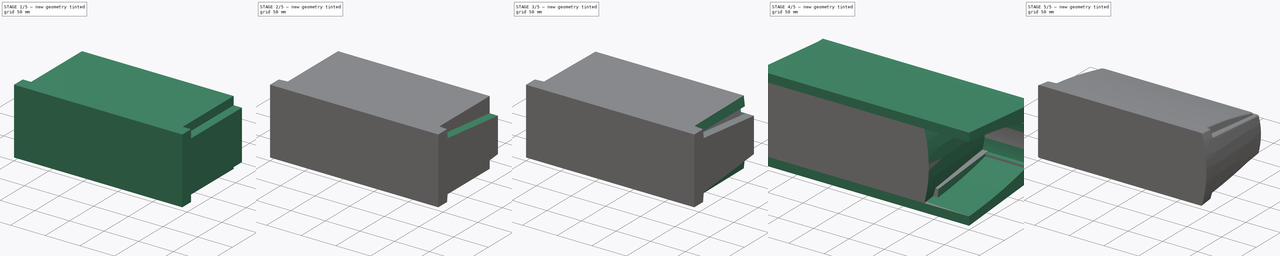
[diagram: build sequence overview — one tinted view per stage of 5, left to right]
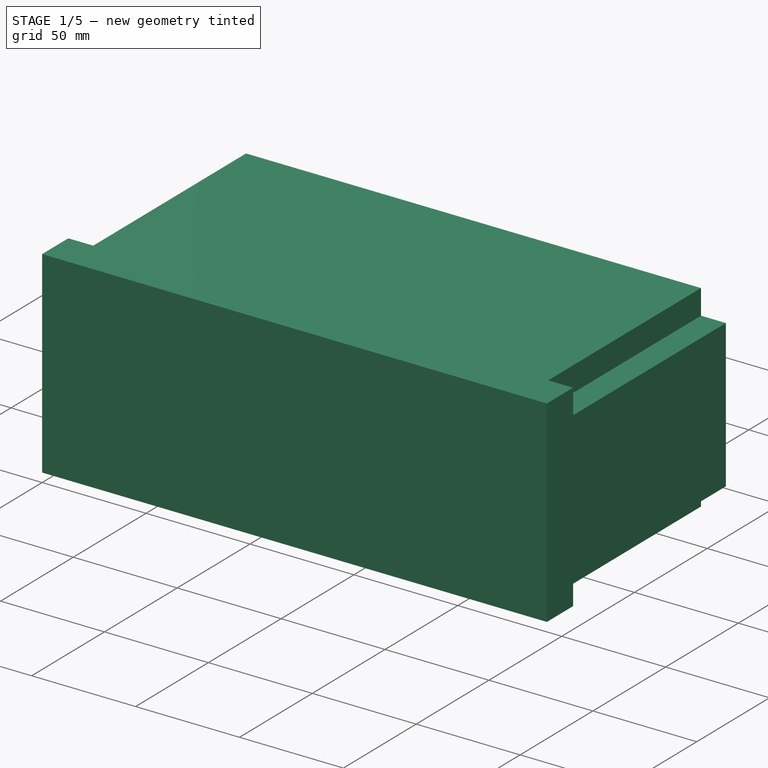
[diagram: stage 1 of 5 — iso view after this stage's code; geometry added in this stage tinted green]
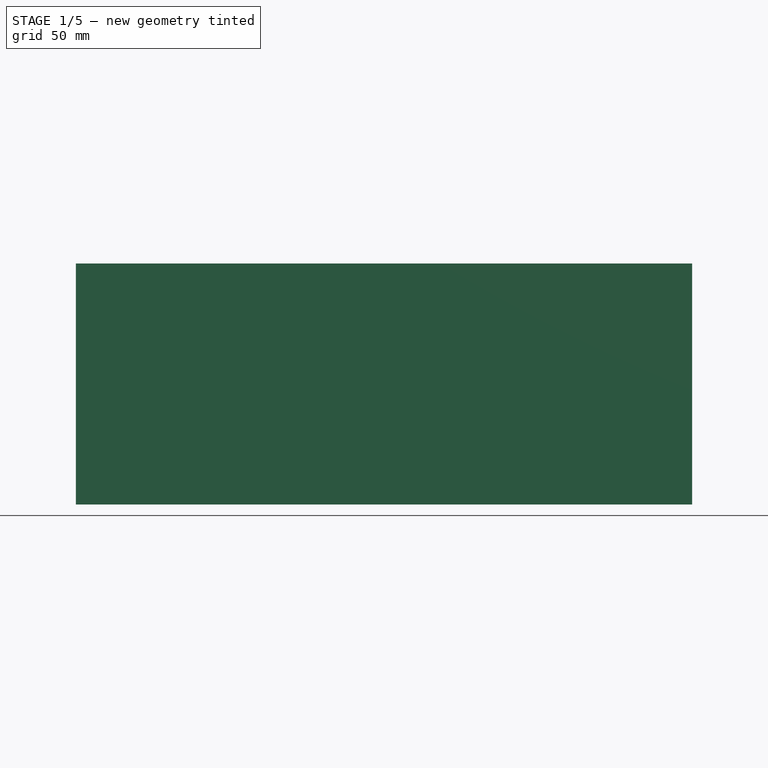
[diagram: stage 1 of 5 — front view after this stage's code; geometry added in this stage tinted green]
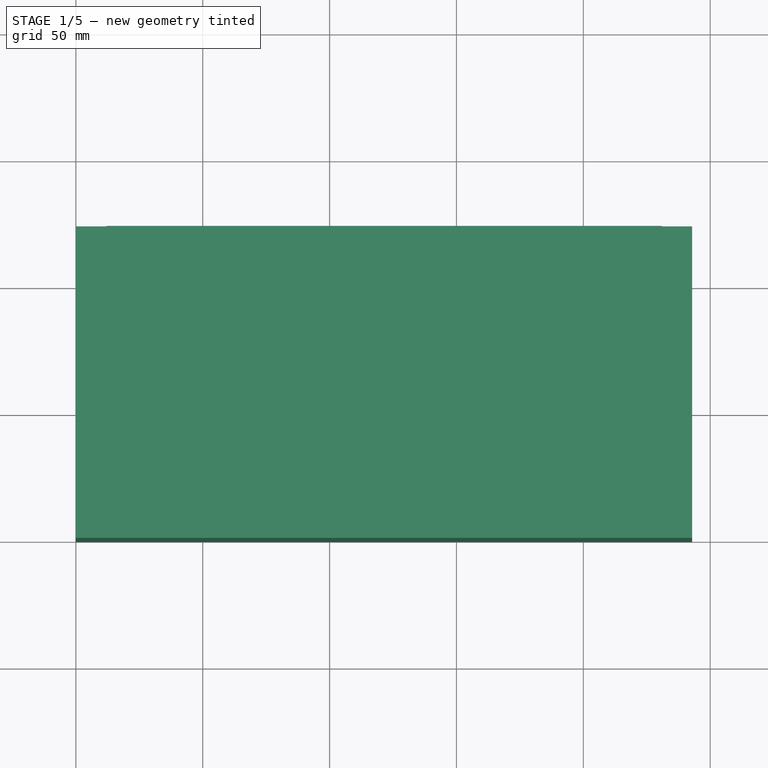
[diagram: stage 1 of 5 — top view after this stage's code; geometry added in this stage tinted green]
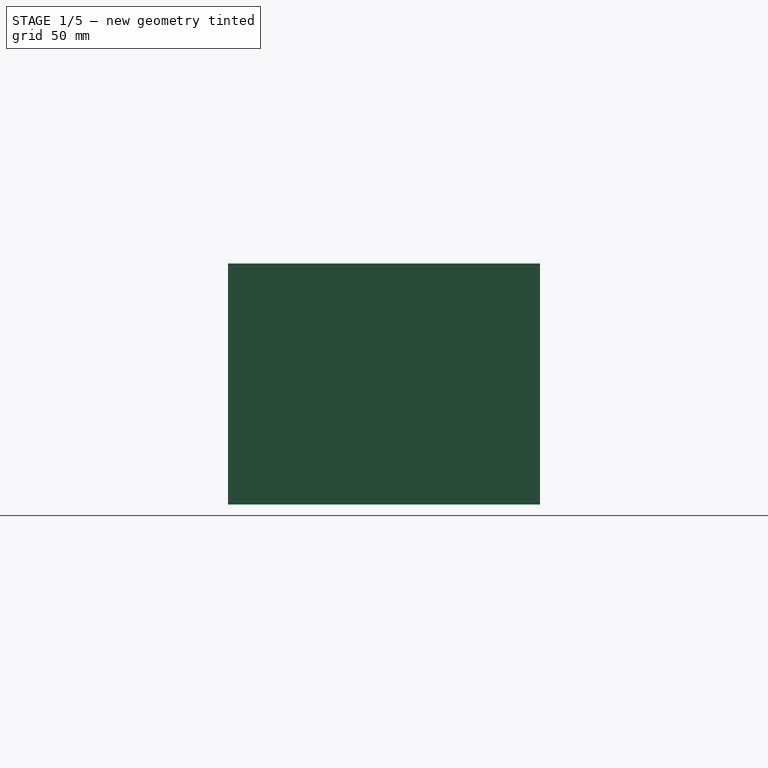
[diagram: stage 1 of 5 — right view after this stage's code; geometry added in this stage tinted green]
FCSTD DOCUMENT  (FreeCAD 0.16R6704 (Git))
Label: speaker-back-4
License: All rights reserved
LicenseURL: http://en.wikipedia.org/wiki/All_rights_reserved
objects: PartDesign::Draft×9, Sketcher::SketchObject×7, PartDesign::Pad×5, Part::Cut×3, PartDesign::Pocket×2, PartDesign::Mirrored×1, PartDesign::LinearPattern×1, PartDesign::MultiTransform×1, Part::Fillet×1, PartDesign::Fillet×1
note: 38 computed .brp shape members not serialized (recipe doc carries the construction recipe); baked Part::Feature solids carry a one-line shape summary decoded from their .brp

FEATURE [Sketcher::SketchObject] Sketch003
  Placement = pos=(0,0,0) rot=(1,0,0;1.5708rad)
  sketch-geometry (9):
    g0: LineSegment StartX=0 StartY=0 StartZ=0 EndX=242.88 EndY=0 EndZ=0
    g1: LineSegment StartX=242.88 StartY=95 StartZ=0 EndX=0 EndY=95 EndZ=0
    g2: LineSegment StartX=0 StartY=95 StartZ=0 EndX=0 EndY=0 EndZ=0
    g3: GeomPoint [constr] X=242.88 Y=47.5 Z=0
    g4: GeomPoint [constr] X=121.44 Y=95 Z=0
    g5: GeomPoint [constr] X=121.44 Y=0 Z=0
    g6: GeomPoint [constr] X=0 Y=47.5 Z=0
    g7: LineSegment StartX=242.88 StartY=47.5 StartZ=0 EndX=242.88 EndY=95 EndZ=0
    g8: LineSegment StartX=242.88 StartY=47.5 StartZ=0 EndX=242.88 EndY=0 EndZ=0
  constraints (21):
    c: Coincident(g1,g2)
    c: Coincident(g2,g0)
    c: Horizontal(g0)
    c: Horizontal(g1)
    c: Vertical(g2)
    c: Coincident(g0,g-1)
    c: PointOnObject(g4,g1)
    c: PointOnObject(g5,g0)
    c: PointOnObject(g6,g2)
    c: DistanceY(g5,g4) = 95
    c: Symmetric(g1,g1,g4)
    c: Symmetric(g-1,g0,g5)
    c: Symmetric(g-1,g1,g6)
    c: DistanceX(g6,g3) = 242.88
    c: DistanceY(g3,g6) = 0
    c: Coincident(g7,g3)
    c: Vertical(g7)
    c: Coincident(g8,g3)
    c: Vertical(g8)
    c: Coincident(g8,g0)
    c: Coincident(g7,g1)
FEATURE [PartDesign::Pad] Pad003
  Length = 123
  Length2 = 100
  Placement = pos=(0,0,0) rot=(1,0,0;1.5708rad)
  Reversed = true
  Sketch = -> Sketch003
  Type = 0
FEATURE [Sketcher::SketchObject] Sketch004
  Placement = pos=(0,0,0) rot=(1,0,0;1.5708rad)
  sketch-geometry (8):
    g0: LineSegment StartX=0 StartY=0 StartZ=0 EndX=236.53 EndY=0 EndZ=0
    g1: LineSegment StartX=236.53 StartY=95 StartZ=0 EndX=0 EndY=95 EndZ=0
    g2: LineSegment StartX=0 StartY=95 StartZ=0 EndX=0 EndY=0 EndZ=0
    g3: GeomPoint [constr] X=242.88 Y=47.5 Z=0
    g4: ArcOfCircle CenterX=62.0475 CenterY=47.5 CenterZ=0 NormalX=0 NormalY=0 NormalZ=1 Radius=180.832 StartAngle=6.01739 EndAngle=6.54898
    g5: GeomPoint [constr] X=118.265 Y=95 Z=0
    g6: GeomPoint [constr] X=118.265 Y=0 Z=0
    g7: GeomPoint [constr] X=0 Y=47.5 Z=0
  constraints (20):
    c: Coincident(g1,g2)
    c: Coincident(g2,g0)
    c: Horizontal(g0)
    c: Horizontal(g1)
    c: Vertical(g2)
    c: Coincident(g0,g-1)
    c: Coincident(g4,g0)
    c: PointOnObject(g3,g4)
    c: PointOnObject(g5,g1)
    c: PointOnObject(g6,g0)
    c: PointOnObject(g7,g2)
    c: DistanceY(g6,g5) = 95
    c: Symmetric(g1,g1,g5)
    c: Symmetric(g-1,g0,g6)
    c: Symmetric(g-1,g1,g7)
    c: DistanceX(g7,g3) = 242.88
    c: DistanceY(g3,g7) = 0
    c: DistanceX(g1,g3) = 6.35
    c: DistanceX(g0,g1) = 0
    c: Coincident(g4,g1)
FEATURE [PartDesign::Pad] Pad004
  Length = 123
  Length2 = 100
  Placement = pos=(0,0,0) rot=(1,0,0;1.5708rad)
  Reversed = true
  Sketch = -> Sketch004
  Type = 0
FEATURE [Sketcher::SketchObject] Sketch005
  ExternalGeometry = -> [Pad004]
  Placement = pos=(0,0,0) rot=(0.707107,0,-0.707107;3.14159rad)
  Support = -> Pad003 [Face3]
  sketch-geometry (10):
    g0: GeomPoint [constr] X=-12 Y=-18 Z=0
    g1: LineSegment StartX=-12 StartY=-18 StartZ=0 EndX=0 EndY=-18 EndZ=0
    g2: GeomPoint [constr] X=-83 Y=-18 Z=0
    g3: LineSegment StartX=-83 StartY=-18 StartZ=0 EndX=-95 EndY=-18 EndZ=0
    g4: LineSegment StartX=-83 StartY=-18 StartZ=0 EndX=-83 EndY=-123 EndZ=0
    g5: LineSegment StartX=-12 StartY=-18 StartZ=0 EndX=-12 EndY=-123 EndZ=0
    g6: LineSegment StartX=-12 StartY=-123 StartZ=0 EndX=0 EndY=-123 EndZ=0
    g7: LineSegment StartX=0 StartY=-123 StartZ=0 EndX=0 EndY=-18 EndZ=0
    g8: LineSegment StartX=-83 StartY=-123 StartZ=0 EndX=-95 EndY=-123 EndZ=0
    g9: LineSegment StartX=-95 StartY=-123 StartZ=0 EndX=-95 EndY=-18 EndZ=0
  constraints (24):
    c: DistanceY(g0,g-1) = 18
    c: Coincident(g1,g0)
    c: PointOnObject(g1,g-6)
    c: Horizontal(g1)
    c: DistanceX(g0,g1) = 12
    c: DistanceY(g2,g-4) = 18
    c: Coincident(g3,g2)
    c: PointOnObject(g3,g-3)
    c: Horizontal(g3)
    c: DistanceX(g3,g2) = 12
    c: Coincident(g4,g2)
    c: PointOnObject(g4,g-5)
    c: Vertical(g4)
    c: Coincident(g5,g0)
    c: PointOnObject(g5,g-5)
    c: Vertical(g5)
    c: Coincident(g6,g5)
    c: Coincident(g6,g-6)
    c: Coincident(g7,g6)
    c: Coincident(g7,g1)
    c: Coincident(g8,g4)
    c: Coincident(g8,g-5)
    c: Coincident(g9,g8)
    c: Coincident(g9,g3)
FEATURE [PartDesign::Pocket] Pocket
  Length = 12
  Placement = pos=(0,0,0) rot=(1,0,0;1.5708rad)
  Sketch = -> Sketch005
  Type = 0
FEATURE [PartDesign::Mirrored] Mirrored
  MirrorPlane = -> Pocket [Face7]
  Placement = pos=(0,0,0) rot=(1,0,0;1.5708rad)
FEATURE [PartDesign::LinearPattern] LinearPattern
  Direction = -> Pocket [Face7]
  Length = 242.9
  Occurrences = 2
  Placement = pos=(0,0,0) rot=(1,0,0;1.5708rad)
  Reversed = true
FEATURE [PartDesign::MultiTransform] MultiTransform
  Originals = -> [Pocket]
  Placement = pos=(0,0,0) rot=(1,0,0;1.5708rad)
  Transformations = -> [Mirrored,LinearPattern]
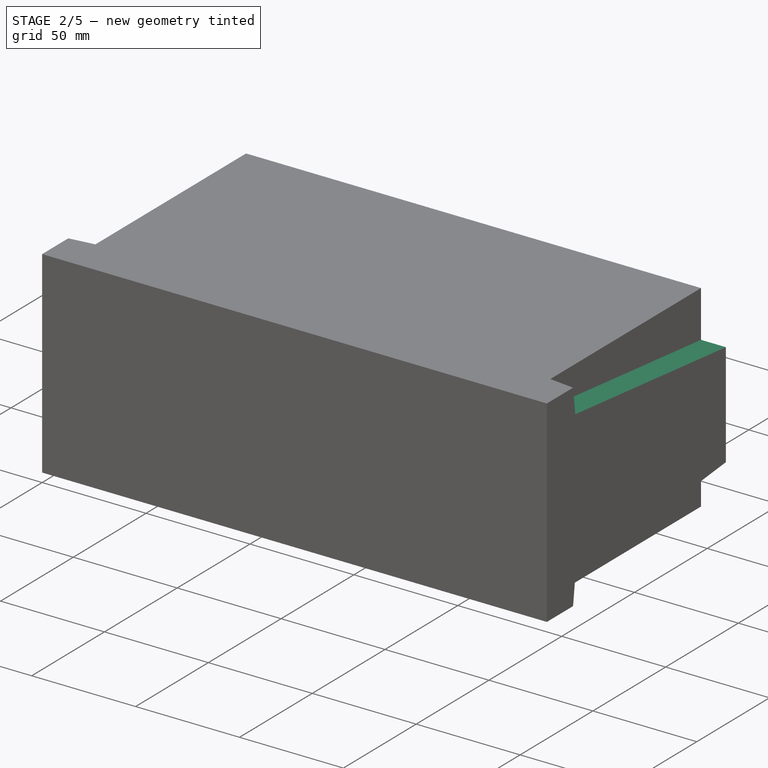
[diagram: stage 2 of 5 — iso view after this stage's code; geometry added in this stage tinted green]
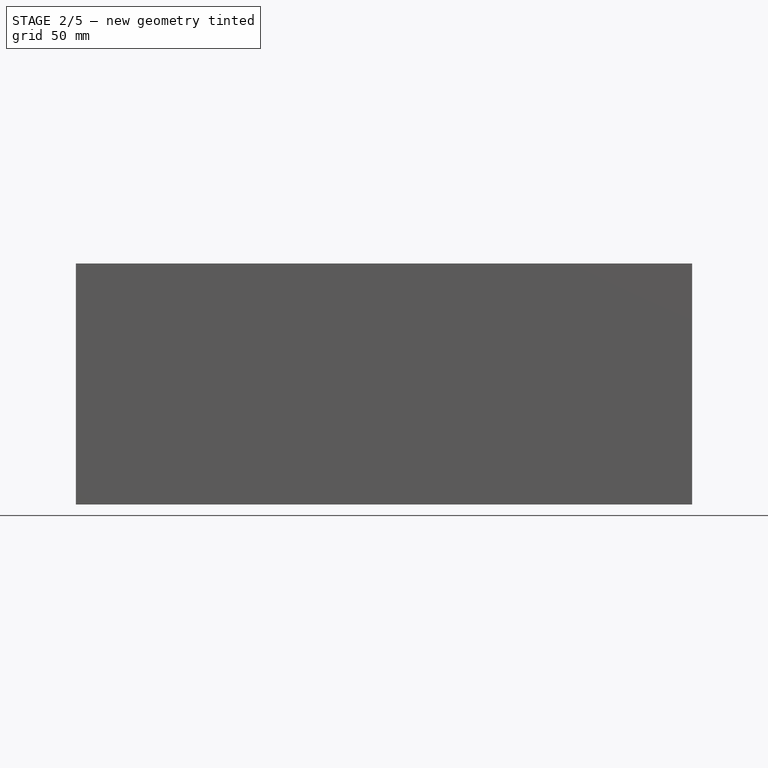
[diagram: stage 2 of 5 — front view after this stage's code; geometry added in this stage tinted green]
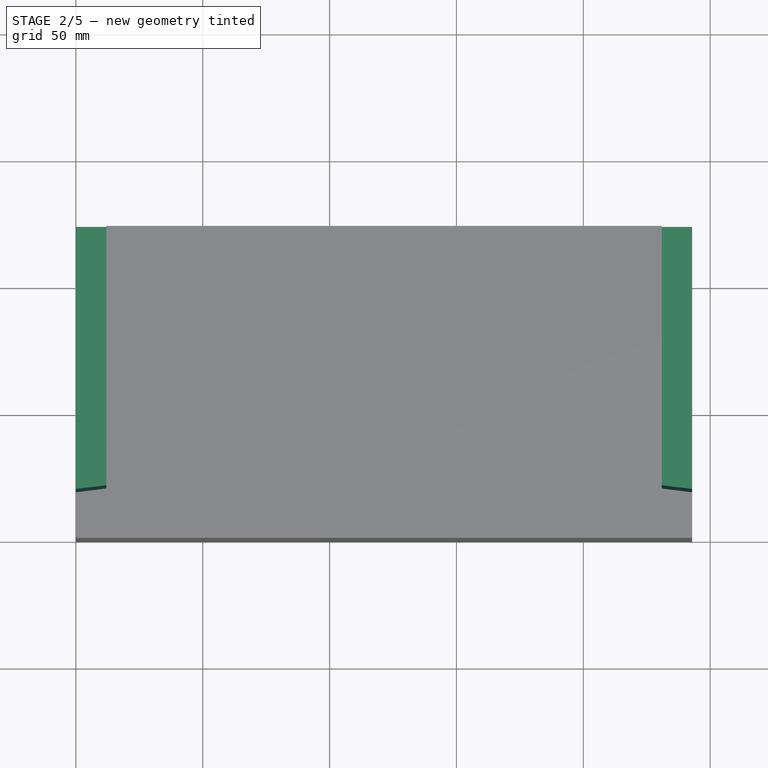
[diagram: stage 2 of 5 — top view after this stage's code; geometry added in this stage tinted green]
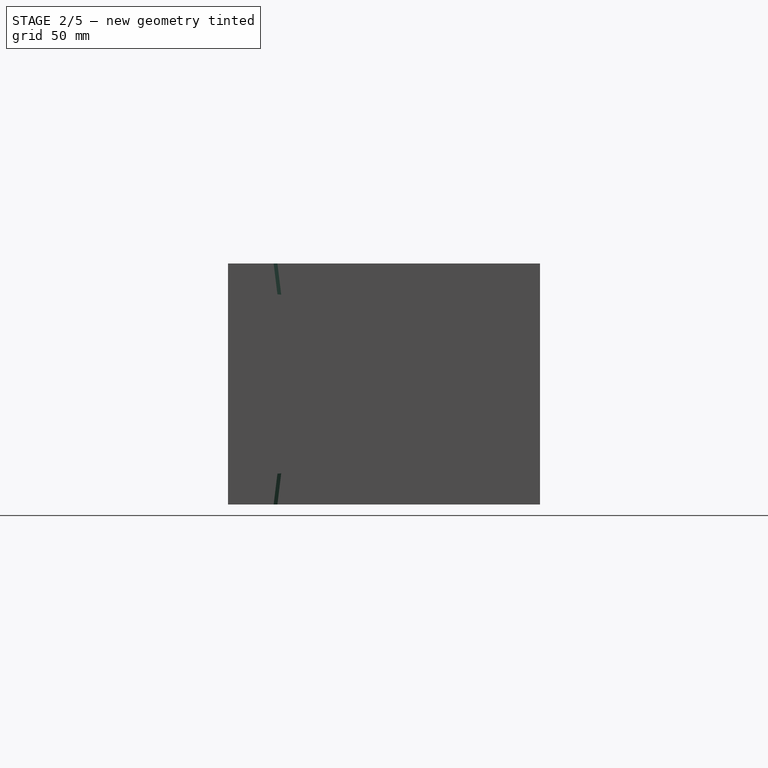
[diagram: stage 2 of 5 — right view after this stage's code; geometry added in this stage tinted green]
FEATURE [PartDesign::Draft] Draft001
  Angle = 5.71
  Base = -> MultiTransform [Face13,Face14,Face17,Face5]
  NeutralPlane = -> MultiTransform [Face10]
  Placement = pos=(0,0,0) rot=(1,0,0;1.5708rad)
  Reversed = true
FEATURE [PartDesign::Draft] Draft002
  Angle = 7
  Base = -> Draft001 [Face10,Face4]
  NeutralPlane = -> Draft001 [Face3]
  Placement = pos=(0,0,0) rot=(1,0,0;1.5708rad)
FEATURE [PartDesign::Draft] Draft003
  Angle = 7
  Base = -> Draft002 [Face18,Face19]
  NeutralPlane = -> Draft002 [Face9]
  Placement = pos=(0,0,0) rot=(1,0,0;1.5708rad)
FEATURE [PartDesign::Draft] Draft004
  Angle = 7
  Base = -> Draft003 [Face4,Face18]
  NeutralPlane = -> Draft003 [Face7]
  Placement = pos=(0,0,0) rot=(1,0,0;1.5708rad)
  Reversed = true
FEATURE [PartDesign::Draft] Draft005
  Angle = 7
  Base = -> Draft004 [Face19,Face10]
  NeutralPlane = -> Draft004 [Face8]
  Placement = pos=(0,0,0) rot=(1,0,0;1.5708rad)
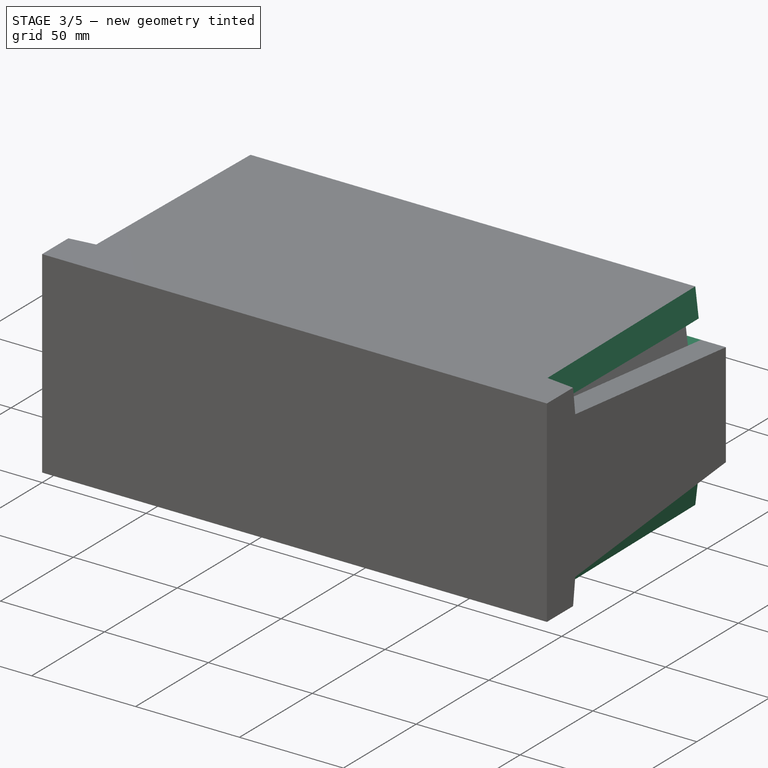
[diagram: stage 3 of 5 — iso view after this stage's code; geometry added in this stage tinted green]
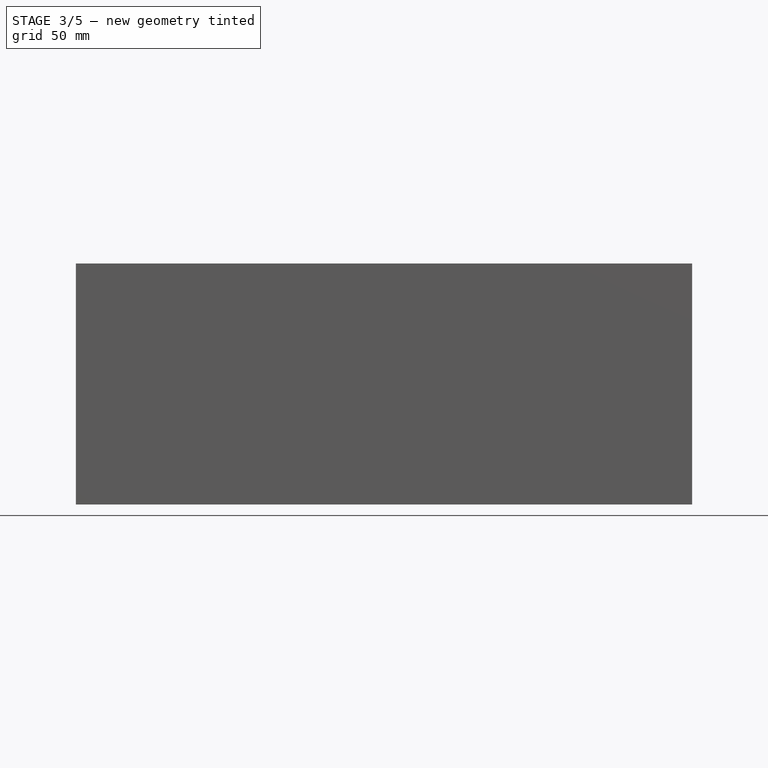
[diagram: stage 3 of 5 — front view after this stage's code; geometry added in this stage tinted green]
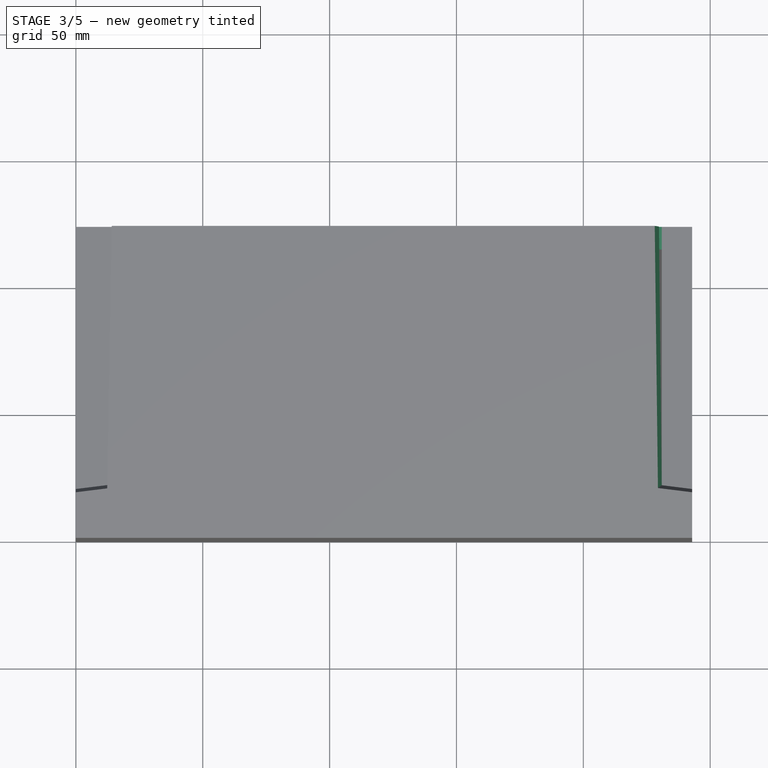
[diagram: stage 3 of 5 — top view after this stage's code; geometry added in this stage tinted green]
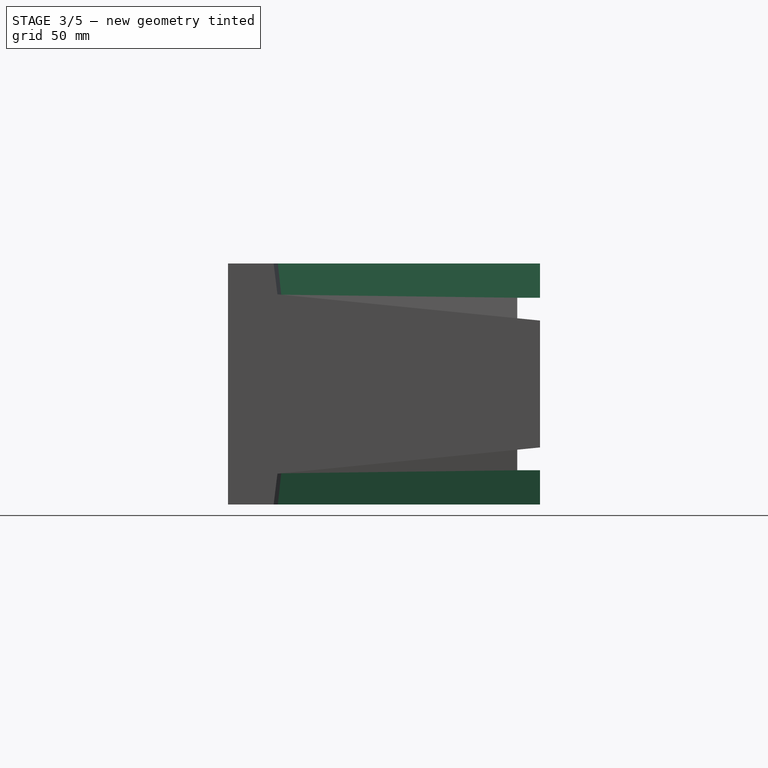
[diagram: stage 3 of 5 — right view after this stage's code; geometry added in this stage tinted green]
FEATURE [PartDesign::Draft] Draft006
  Angle = 7
  Base = -> Draft005 [Face16]
  NeutralPlane = -> Draft005 [Face17]
  Placement = pos=(0,0,0) rot=(1,0,0;1.5708rad)
  Reversed = true
FEATURE [PartDesign::Draft] Draft007  label="Draft009"
  Angle = 7
  Base = -> Draft006 [Face12]
  NeutralPlane = -> Draft006 [Face5]
  Placement = pos=(0,0,0) rot=(1,0,0;1.5708rad)
FEATURE [PartDesign::Draft] Draft008  label="Drafted Mask"
  Angle = 1
  Base = -> Draft007 [Face11,Face15]
  NeutralPlane = -> Draft007 [Face2]
  Placement = pos=(0,0,0) rot=(1,0,0;1.5708rad)
FEATURE [Sketcher::SketchObject] Sketch007
  ExternalGeometry = -> [Draft008]
  Placement = pos=(0,0,0) rot=(0.707107,0,-0.707107;3.14159rad)
  Support = -> Draft008 [Face8]
  sketch-geometry (8):
    g0: LineSegment StartX=-22.4989 StartY=-123 StartZ=0 EndX=-21.599 EndY=-114 EndZ=0
    g1: LineSegment StartX=-21.599 StartY=-114 StartZ=0 EndX=-13.4989 EndY=-114 EndZ=0
    g2: LineSegment StartX=-13.4989 StartY=-114 StartZ=0 EndX=-13.4989 EndY=-123 EndZ=0
    g3: LineSegment StartX=-13.4989 StartY=-123 StartZ=0 EndX=-22.4989 EndY=-123 EndZ=0
    g4: LineSegment StartX=-72.5011 StartY=-123 StartZ=0 EndX=-73.401 EndY=-114 EndZ=0
    g5: LineSegment StartX=-73.401 StartY=-114 StartZ=0 EndX=-81.5011 EndY=-114 EndZ=0
    g6: LineSegment StartX=-81.5011 StartY=-114 StartZ=0 EndX=-81.5011 EndY=-123 EndZ=0
    g7: LineSegment StartX=-81.5011 StartY=-123 StartZ=0 EndX=-72.5011 EndY=-123 EndZ=0
  constraints (22):
    c: Coincident(g0,g-4)
    c: PointOnObject(g0,g-3)
    c: Coincident(g1,g0)
    c: Horizontal(g1)
    c: Coincident(g2,g1)
    c: PointOnObject(g2,g-4)
    c: Vertical(g2)
    c: Coincident(g3,g2)
    c: Coincident(g3,g0)
    c: DistanceY(g2,g2) = 9
    c: DistanceX(g3,g3) = 9
    c: Coincident(g4,g-6)
    c: PointOnObject(g4,g-6)
    c: Coincident(g5,g4)
    c: Horizontal(g5)
    c: Coincident(g6,g5)
    c: PointOnObject(g6,g-5)
    c: Vertical(g6)
    c: Coincident(g7,g6)
    c: Coincident(g7,g4)
    c: DistanceX(g7,g7) = 9
    c: DistanceY(g6,g6) = 9
FEATURE [PartDesign::Pocket] Pocket001  label="Pillar Mask"
  Length = 15
  Placement = pos=(0,0,0) rot=(1,0,0;1.5708rad)
  Sketch = -> Sketch007
  Type = 1
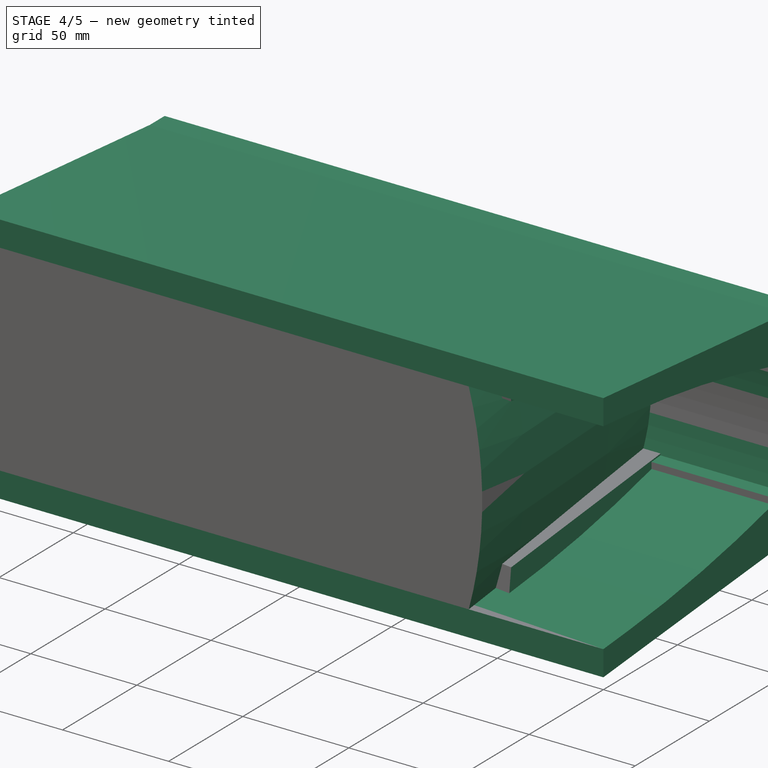
[diagram: stage 4 of 5 — iso view after this stage's code; geometry added in this stage tinted green]
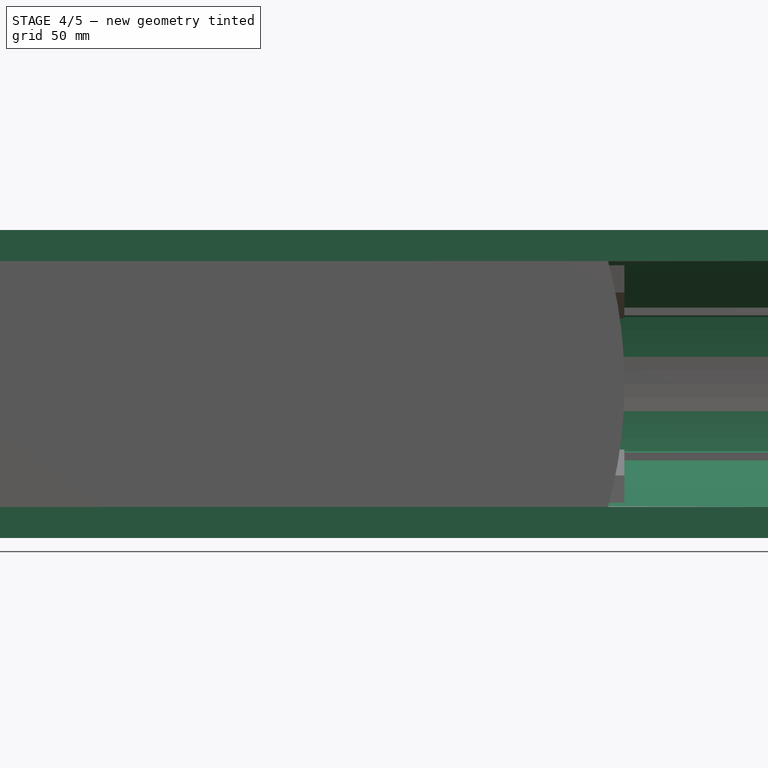
[diagram: stage 4 of 5 — front view after this stage's code; geometry added in this stage tinted green]
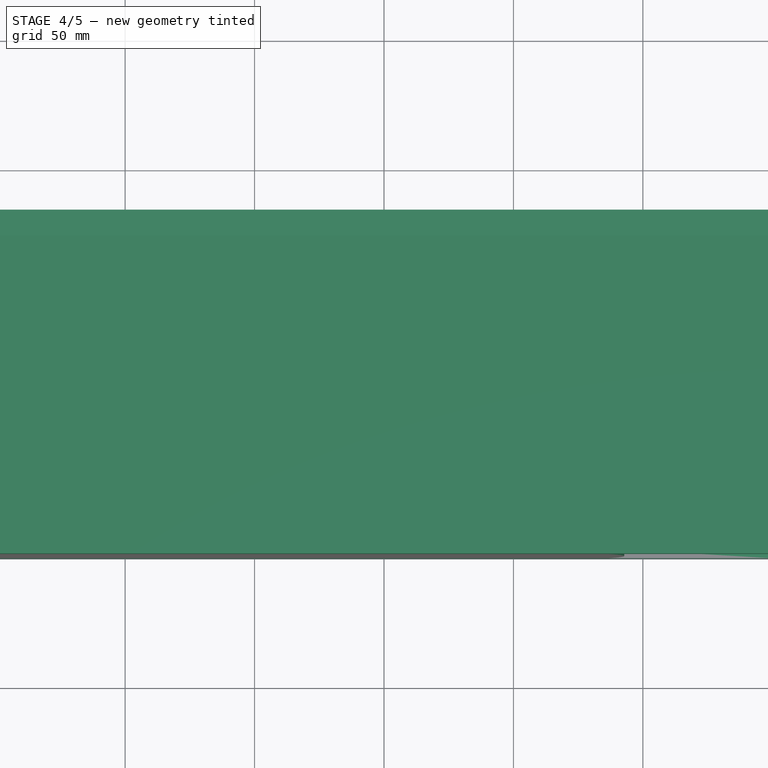
[diagram: stage 4 of 5 — top view after this stage's code; geometry added in this stage tinted green]
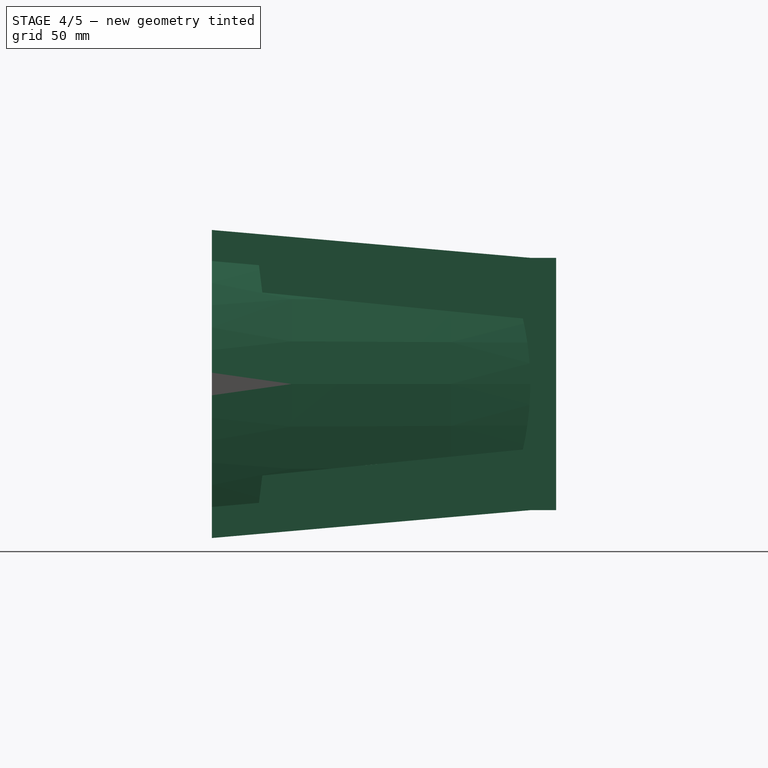
[diagram: stage 4 of 5 — right view after this stage's code; geometry added in this stage tinted green]
FEATURE [Sketcher::SketchObject] Sketch002
  Placement = pos=(0,0,0) rot=(1,0,0;1.5708rad)
  sketch-geometry (8):
    g0: LineSegment StartX=0 StartY=0 StartZ=0 EndX=236.53 EndY=0 EndZ=0
    g1: LineSegment StartX=236.53 StartY=95 StartZ=0 EndX=0 EndY=95 EndZ=0
    g2: LineSegment StartX=0 StartY=95 StartZ=0 EndX=0 EndY=0 EndZ=0
    g3: GeomPoint [constr] X=242.88 Y=47.5 Z=0
    g4: ArcOfCircle CenterX=62.0475 CenterY=47.5 CenterZ=0 NormalX=0 NormalY=0 NormalZ=1 Radius=180.832 StartAngle=6.01739 EndAngle=6.54898
    g5: GeomPoint [constr] X=118.265 Y=95 Z=0
    g6: GeomPoint [constr] X=118.265 Y=0 Z=0
    g7: GeomPoint [constr] X=0 Y=47.5 Z=0
  constraints (20):
    c: Coincident(g1,g2)
    c: Coincident(g2,g0)
    c: Horizontal(g0)
    c: Horizontal(g1)
    c: Vertical(g2)
    c: Coincident(g0,g-1)
    c: Coincident(g4,g0)
    c: PointOnObject(g3,g4)
    c: PointOnObject(g5,g1)
    c: PointOnObject(g6,g0)
    c: PointOnObject(g7,g2)
    c: DistanceY(g6,g5) = 95
    c: Symmetric(g1,g1,g5)
    c: Symmetric(g-1,g0,g6)
    c: Symmetric(g-1,g1,g7)
    c: DistanceX(g7,g3) = 242.88
    c: DistanceY(g3,g7) = 0
    c: DistanceX(g1,g3) = 6.35
    c: DistanceX(g0,g1) = 0
    c: Coincident(g4,g1)
FEATURE [PartDesign::Pad] Pad002
  Length = 123
  Length2 = 100
  Placement = pos=(0,0,0) rot=(1,0,0;1.5708rad)
  Reversed = true
  Sketch = -> Sketch002
  Type = 0
FEATURE [Sketcher::SketchObject] Sketch
  Placement = pos=(0,0,0) rot=(0.707107,0,-0.707107;3.14159rad)
  sketch-geometry (17):
    g0: LineSegment StartX=-95 StartY=0 StartZ=0 EndX=-93.4252 EndY=-18 EndZ=0
    g1: LineSegment StartX=-74.0229 StartY=-114.023 StartZ=0 EndX=-73.5 EndY=-120 EndZ=0
    g2: LineSegment StartX=-74.0229 StartY=-114.023 StartZ=0 EndX=-77.0229 EndY=-114.023 EndZ=0
    g3: ArcOfCircle CenterX=499.56 CenterY=33.8794 CenterZ=0 NormalX=0 NormalY=0 NormalZ=1 Radius=595.251 StartAngle=3.22886 EndAngle=3.39269
    g4: LineSegment StartX=-107 StartY=0 StartZ=0 EndX=-96.2389 EndY=-123 EndZ=0
    g5: LineSegment StartX=0 StartY=0 StartZ=0 EndX=-1.5688 EndY=-17.9315 EndZ=0
    g6: LineSegment StartX=0 StartY=0 StartZ=0 EndX=12 EndY=0 EndZ=0
    g7: LineSegment StartX=12 StartY=0 StartZ=0 EndX=1.2389 EndY=-123 EndZ=0
    g8: LineSegment StartX=-21.5 StartY=-120 StartZ=0 EndX=-20.9771 EndY=-114.023 EndZ=0
    g9: LineSegment StartX=-20.9771 StartY=-114.023 StartZ=0 EndX=-17.9771 EndY=-114.023 EndZ=0
    g10: ArcOfCircle CenterX=-595.391 CenterY=34.0212 CenterZ=0 NormalX=0 NormalY=0 NormalZ=1 Radius=596.09 StartAngle=6.0322 EndAngle=6.19592
    g11: LineSegment StartX=-96.2389 StartY=-123 StartZ=0 EndX=-96.2389 EndY=-133 EndZ=0
    g12: LineSegment StartX=-107 StartY=0 StartZ=0 EndX=-95 EndY=0 EndZ=0
    g13: LineSegment StartX=1.2389 StartY=-123 StartZ=0 EndX=1.2389 EndY=-133 EndZ=0
    g14: LineSegment StartX=1.2389 StartY=-133 StartZ=0 EndX=-96.2389 EndY=-133 EndZ=0
    g15: ArcOfCircle CenterX=-47.5 CenterY=-8.83333 CenterZ=0 NormalX=0 NormalY=0 NormalZ=1 Radius=114.167 StartAngle=4.48264 EndAngle=4.94214
    g16: GeomPoint [constr] X=-47.5 Y=-123 Z=0
  constraints (52):
    c: Distance(g1) = 6
    c: Coincident(g2,g1)
    c: Horizontal(g2)
    c: DistanceX(g2,g2) = 3
    c: Coincident(g3,g2)
    c: Tangent(g3,g0)
    c: DistanceX(g4,g0) = 12
    c: DistanceY(g0,g0) = 18
    c: Parallel(g0,g4)
    c: Parallel(g0,g1)
    c: Coincident(g5,g-1)
    c: Coincident(g6,g-1)
    c: Horizontal(g6)
    c: DistanceX(g6,g6) = 12
    c: Distance(g5) = 18
    c: Coincident(g7,g6)
    c: Parallel(g5,g7)
    c: Parallel(g5,g8)
    c: Distance(g8) = 6
    c: Coincident(g9,g8)
    c: Horizontal(g9)
    c: DistanceX(g9,g9) = 3
    c: Coincident(g10,g5)
    c: Coincident(g10,g9)
    c: Tangent(g10,g5)
    c: Coincident(g11,g4)
    c: Vertical(g11)
    c: DistanceY(g11,g11) = 10
    c: Coincident(g12,g4)
    c: Coincident(g12,g0)
    c: Horizontal(g12)
    c: Coincident(g13,g7)
    c: Vertical(g13)
    c: Coincident(g14,g13)
    c: Coincident(g14,g11)
    c: Horizontal(g14)
    c: Coincident(g15,g1)
    c: Coincident(g15,g8)
    c: Coincident(g3,g0)
    c: DistanceX(g0,g-1) = 95
    c: DistanceX(g7,g6) = 10.7611
    c: DistanceY(g0,g-1) = 0
    c: DistanceY(g4,g4) = 123
    c: PointOnObject(g16,g15)
    c: DistanceY(g16,g1) = 3
    c: DistanceY(g16,g8) = 3
    c: DistanceX(g1,g16) = 26
    c: DistanceX(g16,g8) = 26
    c: DistanceY(g7,g6) = 123
    c: DistanceX(g4,g4) = 10.7611
    c: DistanceY(g16,g0) = 123
    c: DistanceX(g0,g16) = 47.5
FEATURE [PartDesign::Pad] Pad
  Length = 300
  Length2 = 100
  Placement = pos=(0,0,0) rot=(0.707107,0,-0.707107;3.14159rad)
  Reversed = true
  Sketch = -> Sketch
  Type = 0
FEATURE [PartDesign::Draft] Draft
  Angle = 3
  Base = -> Pad002 [Face2,Face4]
  NeutralPlane = -> Pad002 [Face5]
  Placement = pos=(0,0,0) rot=(1,0,0;1.5708rad)
FEATURE [Sketcher::SketchObject] Sketch006
  Placement = pos=(0,0,0) rot=(1,0,0;1.5708rad)
  sketch-geometry (9):
    g0: LineSegment StartX=0 StartY=0 StartZ=0 EndX=242.88 EndY=0 EndZ=0
    g1: LineSegment StartX=242.88 StartY=95 StartZ=0 EndX=0 EndY=95 EndZ=0
    g2: LineSegment StartX=0 StartY=95 StartZ=0 EndX=0 EndY=0 EndZ=0
    g3: GeomPoint [constr] X=242.88 Y=47.5 Z=0
    g4: GeomPoint [constr] X=121.44 Y=95 Z=0
    g5: GeomPoint [constr] X=121.44 Y=0 Z=0
    g6: GeomPoint [constr] X=0 Y=47.5 Z=0
    g7: LineSegment StartX=242.88 StartY=47.5 StartZ=0 EndX=242.88 EndY=95 EndZ=0
    g8: LineSegment StartX=242.88 StartY=47.5 StartZ=0 EndX=242.88 EndY=0 EndZ=0
  constraints (21):
    c: Coincident(g1,g2)
    c: Coincident(g2,g0)
    c: Horizontal(g0)
    c: Horizontal(g1)
    c: Vertical(g2)
    c: Coincident(g0,g-1)
    c: PointOnObject(g4,g1)
    c: PointOnObject(g5,g0)
    c: PointOnObject(g6,g2)
    c: DistanceY(g5,g4) = 95
    c: Symmetric(g1,g1,g4)
    c: Symmetric(g-1,g0,g5)
    c: Symmetric(g-1,g1,g6)
    c: DistanceX(g6,g3) = 242.88
    c: DistanceY(g3,g6) = 0
    c: Coincident(g7,g3)
    c: Vertical(g7)
    c: Coincident(g8,g3)
    c: Vertical(g8)
    c: Coincident(g8,g0)
    c: Coincident(g7,g1)
FEATURE [PartDesign::Pad] Pad005
  Length = 123
  Length2 = 100
  Placement = pos=(0,0,0) rot=(1,0,0;1.5708rad)
  Reversed = true
  Sketch = -> Sketch006
  Type = 0
FEATURE [Part::Cut] Cut001  label="Carvout"
  Base = -> Pad005
  Tool = -> Pocket001
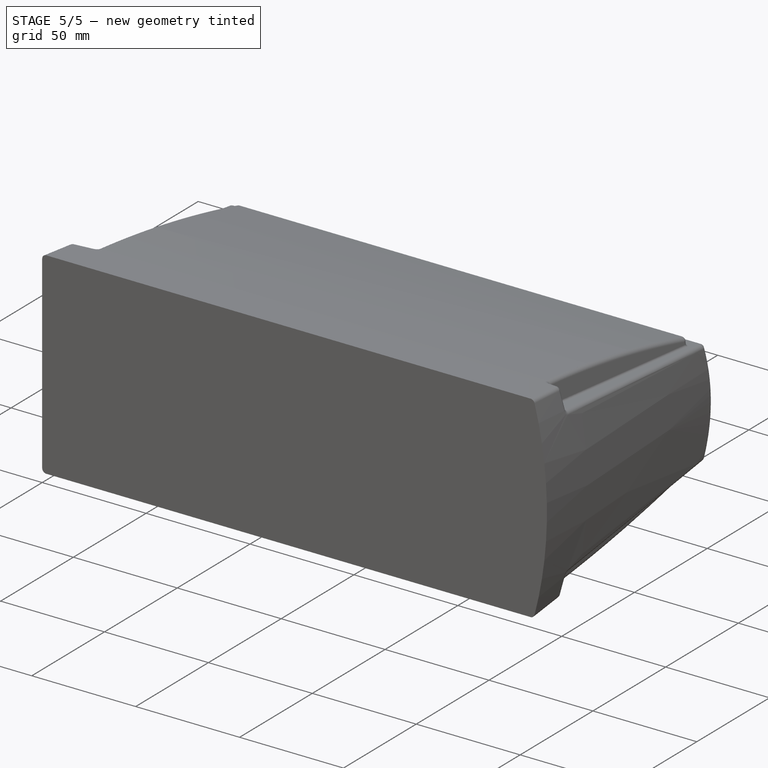
[diagram: stage 5 of 5 — iso view after this stage's code; geometry added in this stage tinted green]
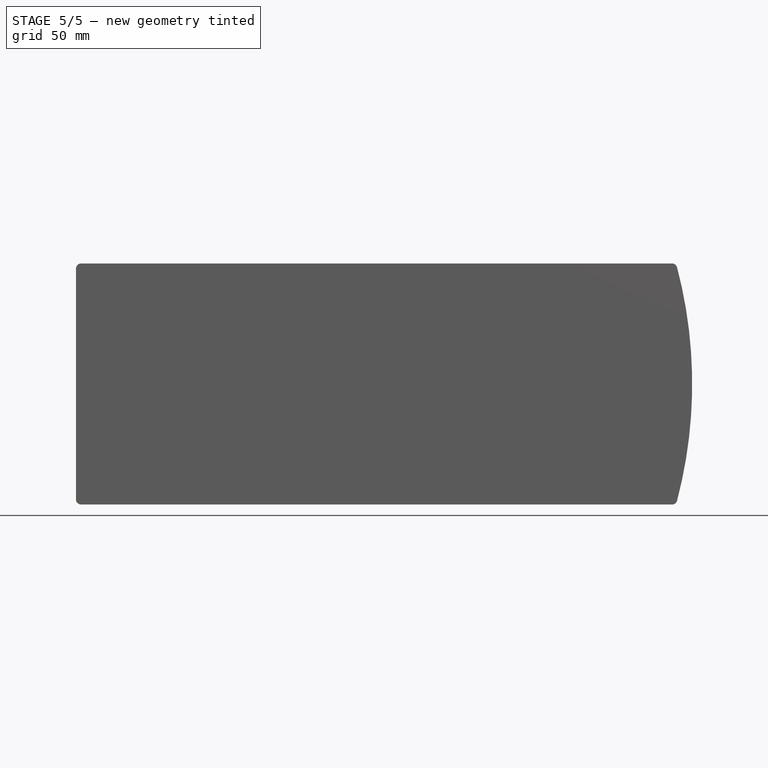
[diagram: stage 5 of 5 — front view after this stage's code; geometry added in this stage tinted green]
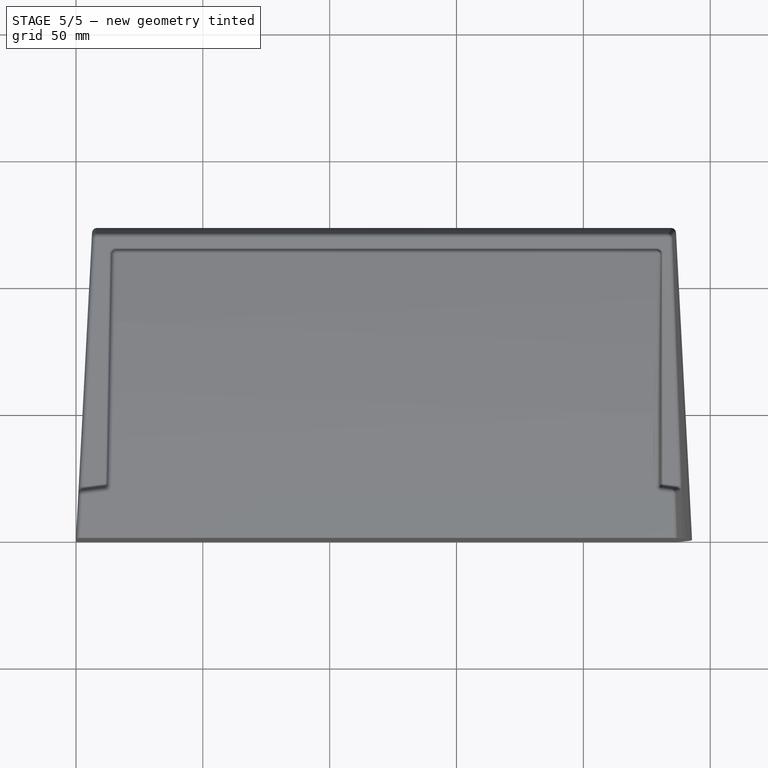
[diagram: stage 5 of 5 — top view after this stage's code; geometry added in this stage tinted green]
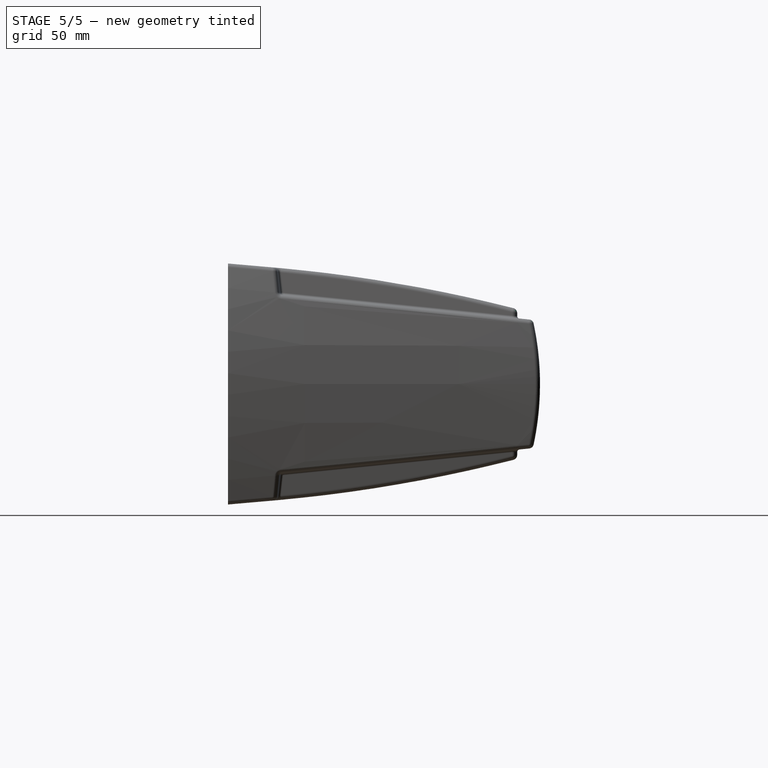
[diagram: stage 5 of 5 — right view after this stage's code; geometry added in this stage tinted green]
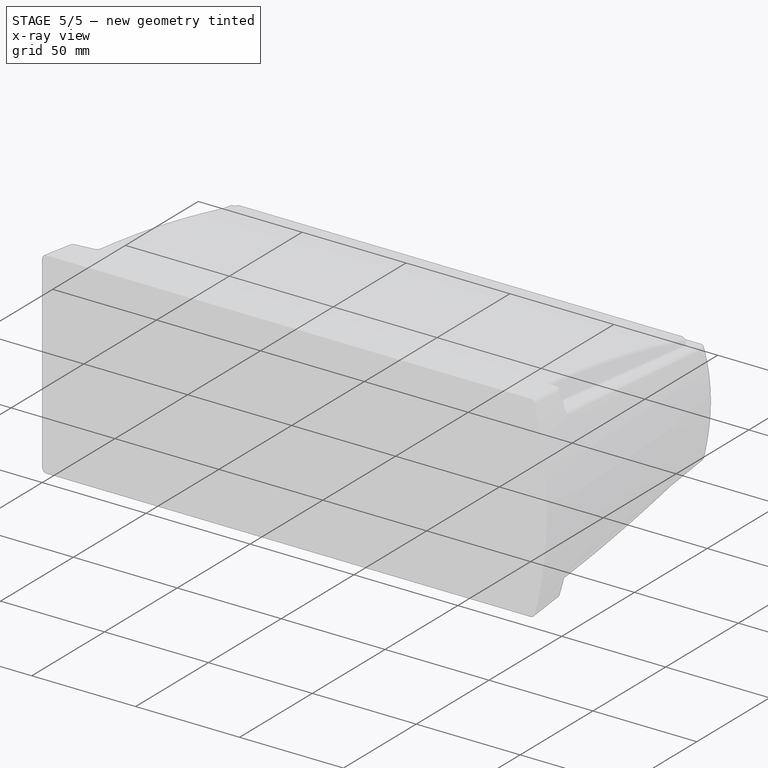
[diagram: stage 5 of 5 — x-ray composite at the iso view; earlier geometry ghosted, this stage's added geometry solid]
FEATURE [Part::Cut] Cut  label="Curved Mask"
  Base = -> Draft
  Tool = -> Pad
FEATURE [Part::Cut] Cut002  label="Speaker Back-no fillet"
  Base = -> Cut
  Tool = -> Cut001
FEATURE [Part::Fillet] Fillet
  Base = -> Cut002
  Edges = 52 edges: [Edge5 r=2,Edge7 r=2,Edge8 r=2,Edge9 r=2,Edge10 r=2,Edge11 r=2,Edge12 r=2,Edge13 r=2,Edge14 r=2,Edge15 r=2,Edge16 r=2,Edge17 r=2,Edge18 r=2,Edge19 r=2,Edge20 r=2,Edge21 r=2,Edge22 r=2,Edge23 r=2,Edge24 r=2,Edge25 r=2,Edge26 r=2,Edge27 r=2,Edge28 r=2,Edge29 r=2,Edge31 r=2,Edge32 r=2,Edge33 r=2,Edge34 r=2,Edge35 r=2,Edge36 r=1,Edge37 r=1,Edge40 r=2,Edge42 r=2,Edge43 r=2,Edge45 r=2,Edge46 r=2,Edge47 r=2,Edge51 r=1,Edge52 r=2,Edge53 r=1,Edge54 r=2,Edge55 r=2,Edge56 r=2,Edge57 r=2,Edge58 r=1,Edge59 r=1,Edge66 r=1,Edge67 r=1,Edge68 r=2,Edge70 r=2,Edge72 r=2,Edge73 r=2]
FEATURE [PartDesign::Fillet] Fillet001  label="Speaker Back"
  Base = -> Fillet [Edge178,Edge216,Edge155,Edge149,Edge186,Edge220]
  Radius = 1
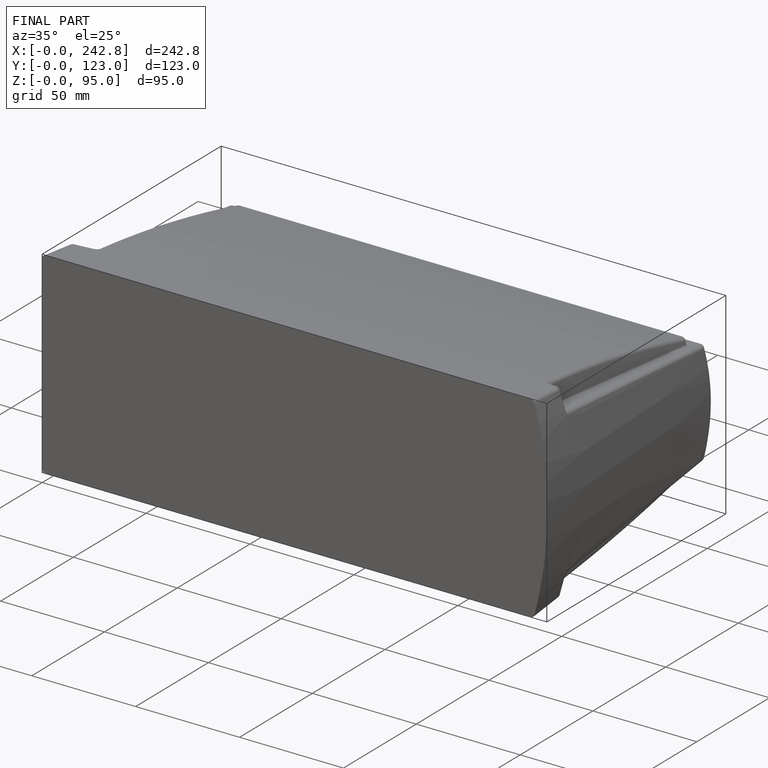
[diagram: finished part — iso view with bounding-box wireframe]
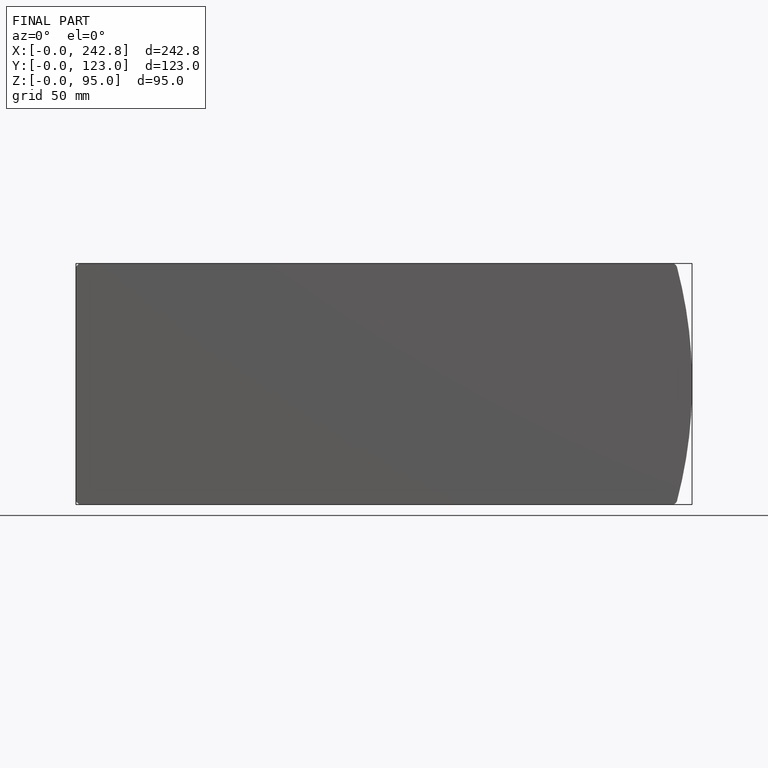
[diagram: finished part — front view with bounding-box wireframe]
